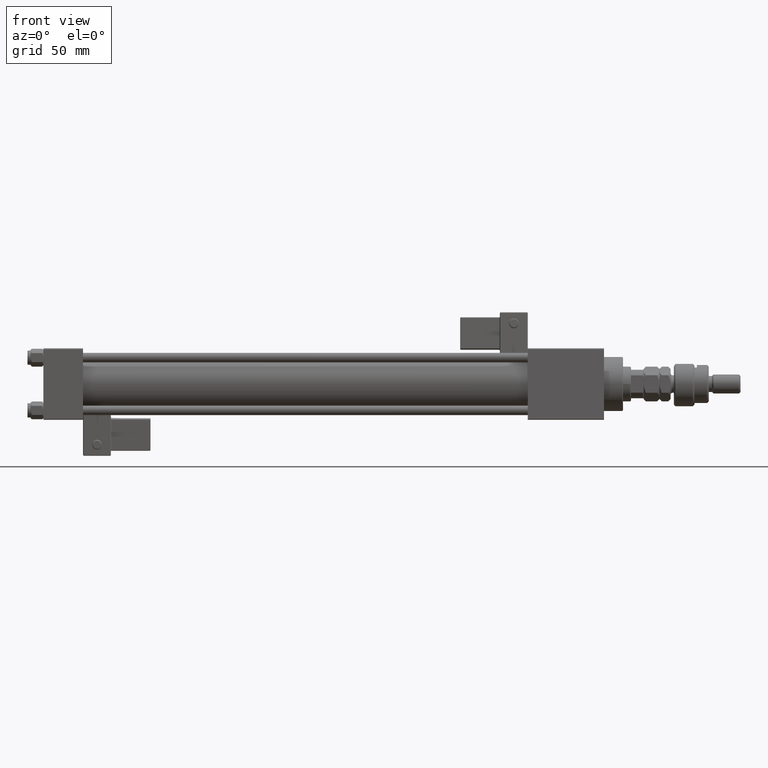
[diagram: clean part render]
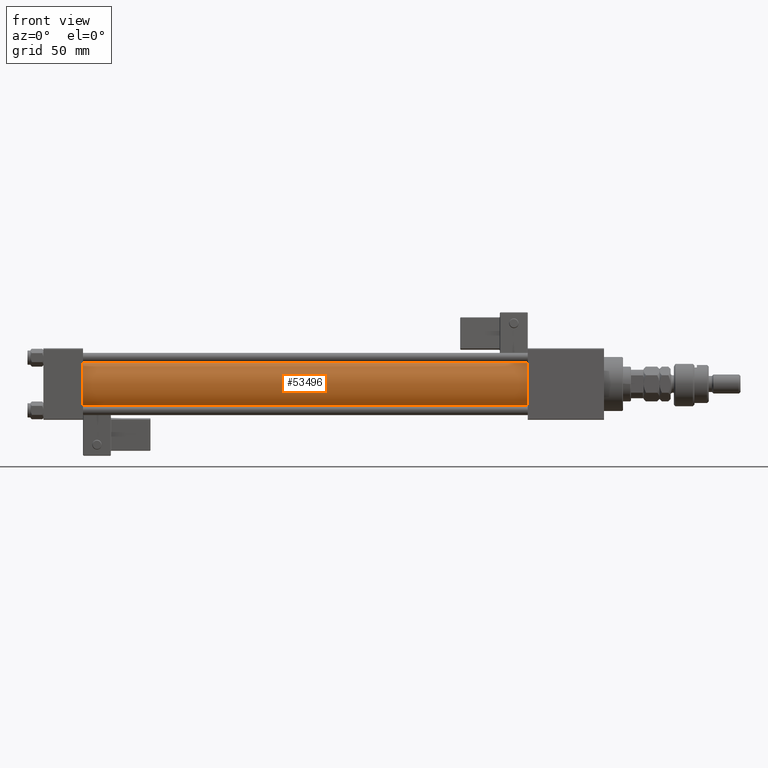
[diagram: same view with one face highlighted and labeled with its STEP entity id]
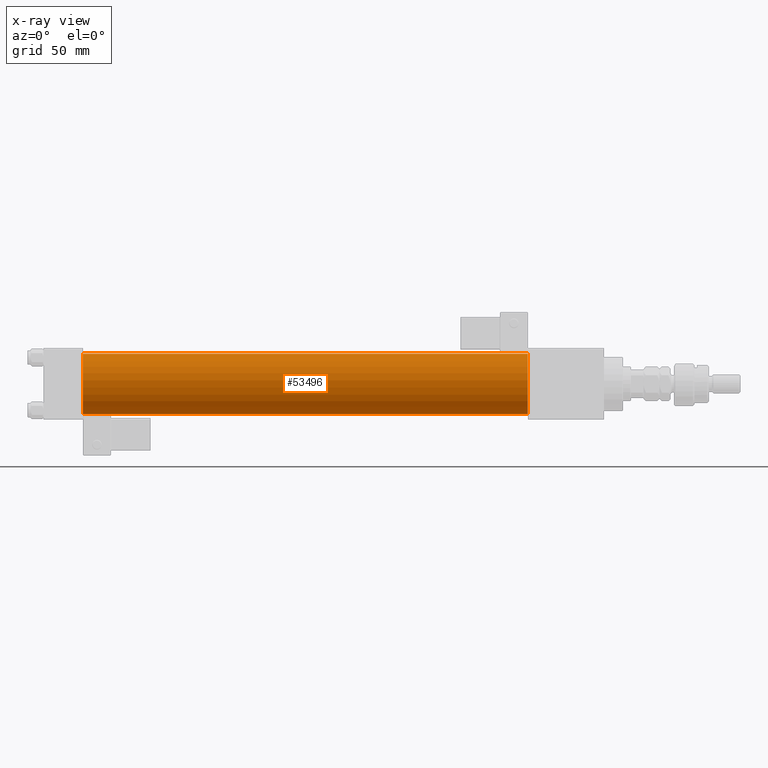
[diagram: x-ray of the same camera — body ghosted, the highlighted face saturated]
A machine part, front view. The second image highlights one B-rep face of the part: STEP entity #53496.
The next image is the same camera in x-ray: the body ghosted, the highlighted face saturated — about 0% of this face is hidden behind the body in this view.
In plain terms, the highlighted cylindrical surface (edge-blend (fillet) strip) has radius 19 mm, axis along (-1, -0, -0).
Its self-contained STEP definition (entity closure, byte-faithful):
#684 = CARTESIAN_POINT ( 'NONE',  ( 305.0000000000000568, -2.752562955852396712E-16, -19.00000000000000000 ) ) ;
#1443 = CIRCLE ( 'NONE', #33641, 19.00000000000000000 ) ;
#2389 = CARTESIAN_POINT ( 'NONE',  ( 305.0000000000000568, -2.602085213965210642E-15, 0.000000000000000000 ) ) ;
#2515 = AXIS2_PLACEMENT_3D ( 'NONE', #55196, #16812, #24940 ) ;
#6925 = CARTESIAN_POINT ( 'NONE',  ( 25.00000000000002132, -2.602085213965210642E-15, 19.00000000000000000 ) ) ;
#7500 = CARTESIAN_POINT ( 'NONE',  ( 305.0000000000000568, -2.602085213965210642E-15, 19.00000000000000000 ) ) ;
#9108 = EDGE_LOOP ( 'NONE', ( #19310, #43417, #53413, #36958 ) ) ;
#9211 = VECTOR ( 'NONE', #54622, 1000.000000000000000 ) ;
#10456 = DIRECTION ( 'NONE',  ( 0.000000000000000000, 0.000000000000000000, 1.000000000000000000 ) ) ;
#12618 = CYLINDRICAL_SURFACE ( 'NONE', #2515, 19.00000000000000000 ) ;
#13655 = EDGE_CURVE ( 'NONE', #26283, #37090, #51227, .T. ) ;
#16812 = DIRECTION ( 'NONE',  ( -1.000000000000000000, -0.000000000000000000, -0.000000000000000000 ) ) ;
#18185 = EDGE_CURVE ( 'NONE', #41115, #37090, #25170, .T. ) ;
#19310 = ORIENTED_EDGE ( 'NONE', *, *, #18185, .F. ) ;
#19381 = CARTESIAN_POINT ( 'NONE',  ( 305.0000000000000568, -2.602085213965210642E-15, 19.00000000000000000 ) ) ;
#19474 = DIRECTION ( 'NONE',  ( 0.000000000000000000, 0.000000000000000000, -1.000000000000000000 ) ) ;
#20426 = CARTESIAN_POINT ( 'NONE',  ( 305.0000000000000568, -2.752562955852396712E-16, -19.00000000000000000 ) ) ;
#21014 = FACE_OUTER_BOUND ( 'NONE', #9108, .T. ) ;
#23946 = DIRECTION ( 'NONE',  ( 1.000000000000000000, 0.000000000000000000, 0.000000000000000000 ) ) ;
#24138 = VERTEX_POINT ( 'NONE', #7500 ) ;
#24940 = DIRECTION ( 'NONE',  ( 0.000000000000000000, 0.000000000000000000, 1.000000000000000000 ) ) ;
#25170 = LINE ( 'NONE', #20426, #9211 ) ;
#26283 = VERTEX_POINT ( 'NONE', #6925 ) ;
#28869 = LINE ( 'NONE', #19381, #44484 ) ;
#32259 = DIRECTION ( 'NONE',  ( -1.000000000000000000, -0.000000000000000000, -0.000000000000000000 ) ) ;
#32833 = CARTESIAN_POINT ( 'NONE',  ( 25.00000000000002132, -2.602085213965210642E-15, 0.000000000000000000 ) ) ;
#33641 = AXIS2_PLACEMENT_3D ( 'NONE', #2389, #23946, #19474 ) ;
#36958 = ORIENTED_EDGE ( 'NONE', *, *, #13655, .T. ) ;
#37055 = DIRECTION ( 'NONE',  ( 1.000000000000000000, -0.000000000000000000, 0.000000000000000000 ) ) ;
#37090 = VERTEX_POINT ( 'NONE', #55393 ) ;
#39846 = EDGE_CURVE ( 'NONE', #24138, #41115, #1443, .T. ) ;
#41115 = VERTEX_POINT ( 'NONE', #684 ) ;
#41658 = EDGE_CURVE ( 'NONE', #24138, #26283, #28869, .T. ) ;
#42277 = AXIS2_PLACEMENT_3D ( 'NONE', #32833, #37055, #10456 ) ;
#43417 = ORIENTED_EDGE ( 'NONE', *, *, #39846, .F. ) ;
#44484 = VECTOR ( 'NONE', #32259, 1000.000000000000000 ) ;
#51227 = CIRCLE ( 'NONE', #42277, 19.00000000000000000 ) ;
#53413 = ORIENTED_EDGE ( 'NONE', *, *, #41658, .T. ) ;
#53496 = ADVANCED_FACE ( 'NONE', ( #21014 ), #12618, .T. ) ;
#54622 = DIRECTION ( 'NONE',  ( -1.000000000000000000, -0.000000000000000000, -0.000000000000000000 ) ) ;
#55196 = CARTESIAN_POINT ( 'NONE',  ( 305.0000000000000568, -2.602085213965210642E-15, 0.000000000000000000 ) ) ;
#55393 = CARTESIAN_POINT ( 'NONE',  ( 25.00000000000002132, -2.752562955852396712E-16, -19.00000000000000000 ) ) ;